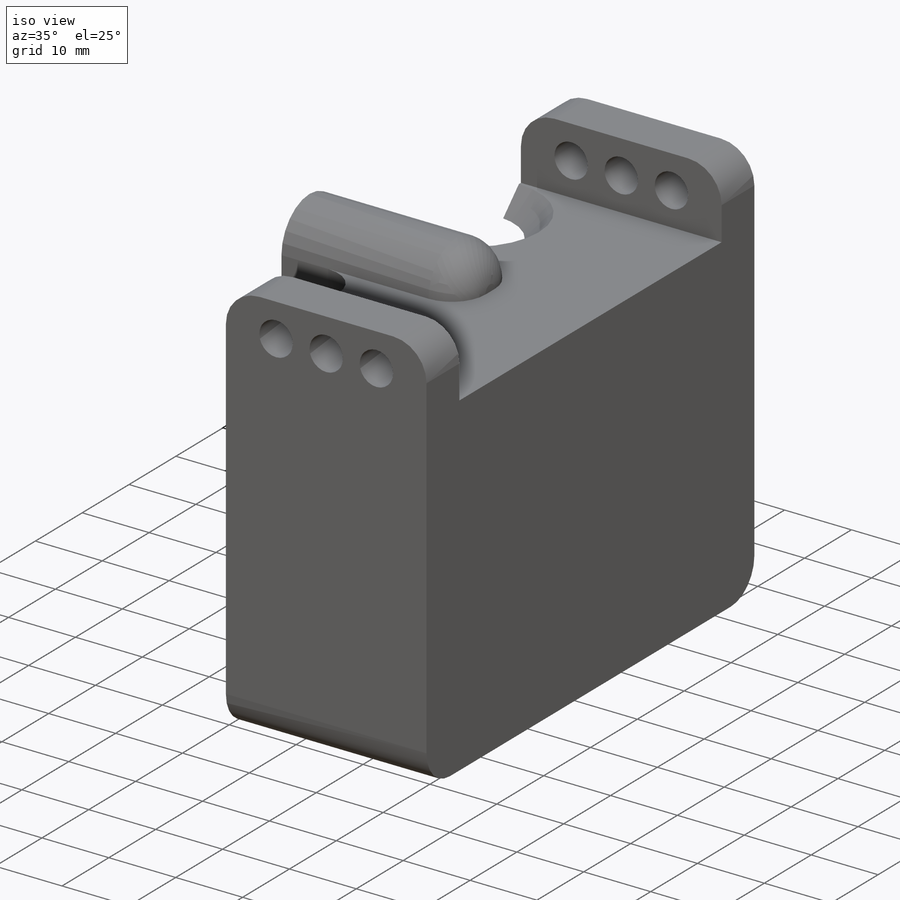
[diagram: iso view]
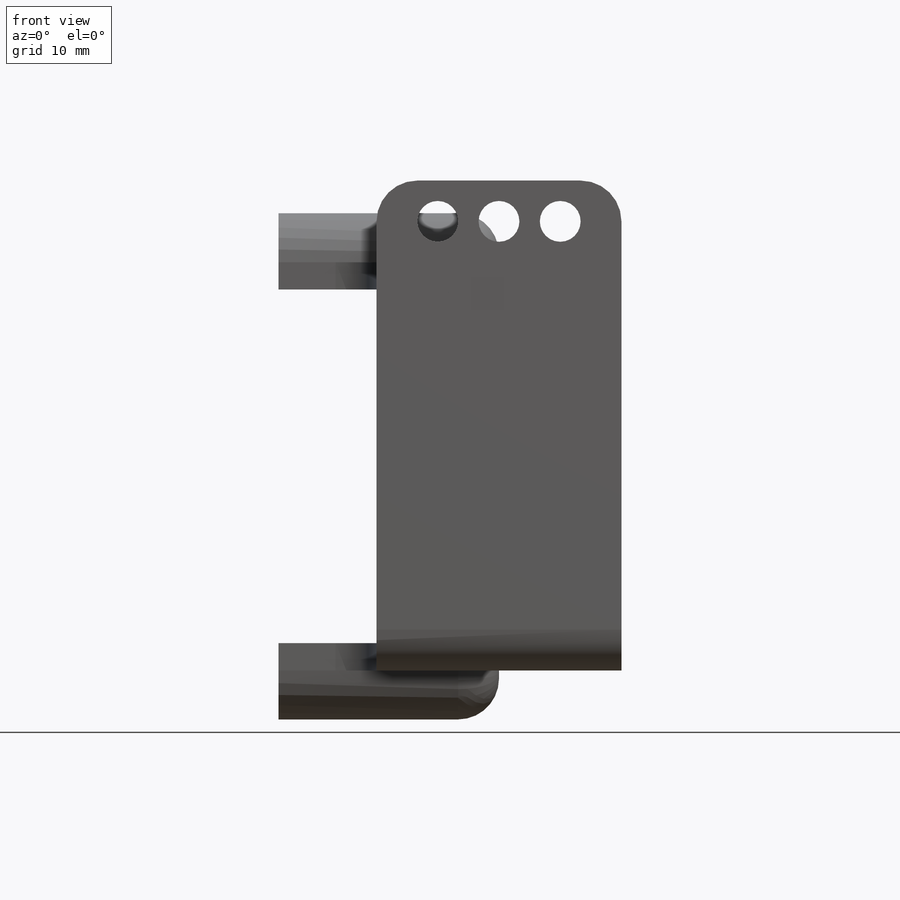
[diagram: front view]
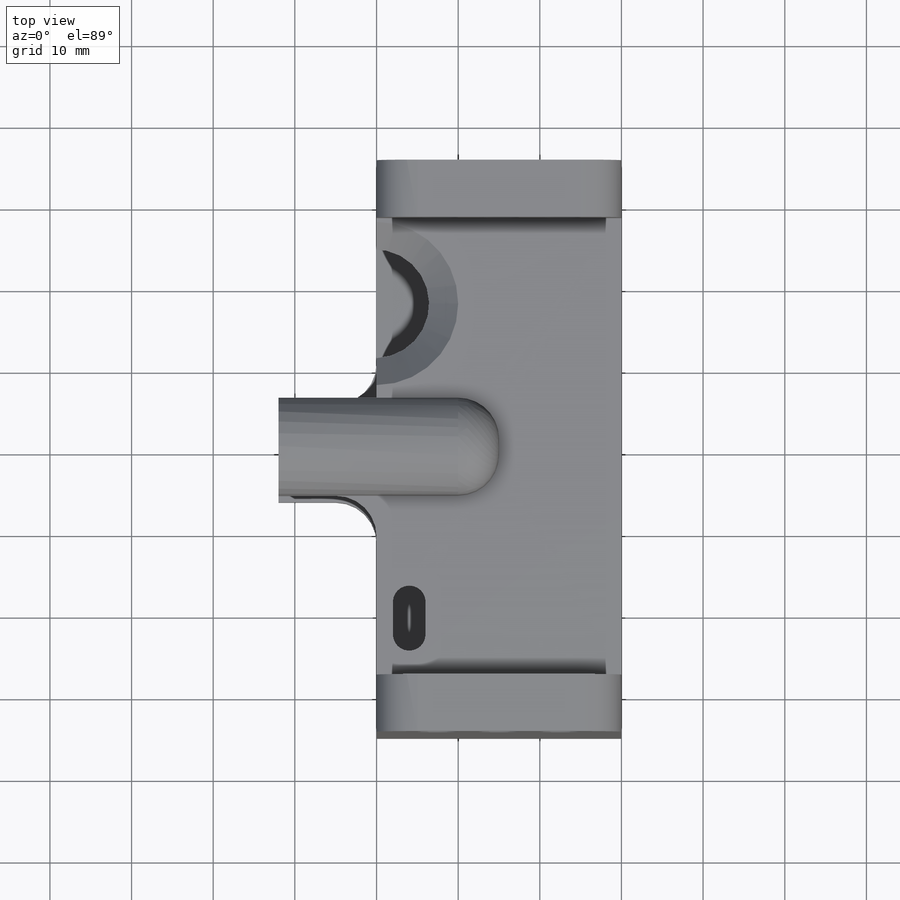
[diagram: top view]
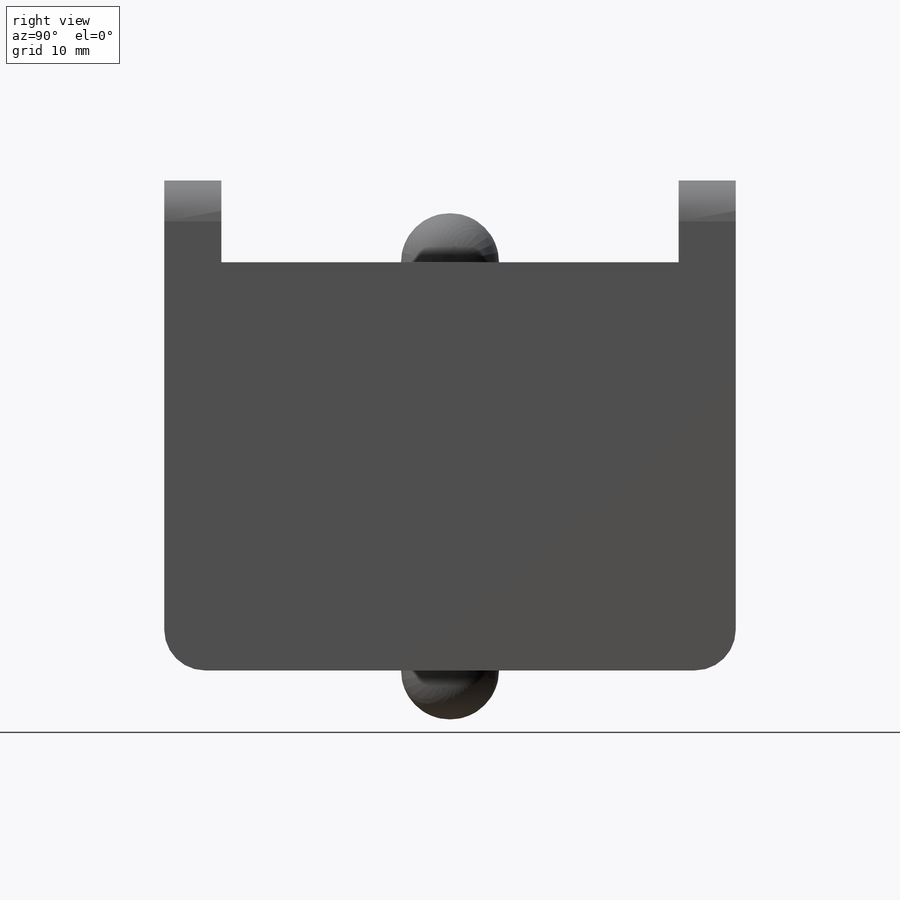
[diagram: right view]
SOLIDWORKS PART (.sldprt)
format: sldprt  version: not decoded by parser v0  size: 385,024 bytes
history: native  units: mm
features: sketch x10, fillet x6, cut_extrude x6, extrude x4, material x1, chamfer x1 (+11 scaffold rows collapsed)
feature tree (39):
  scaffold x11  (default folders/planes/origin — collapsed)
  material  "Material <not specified>"
  sketch  "Sketch1"  dims[c1.D1=60.0mm c1.D2=~52.085603mm c2.D1=50.0mm c2.D2=70.0mm]
  extrude  "Boss-Extrude1"  Depth=30mm
  fillet  "Fillet1"  Radius=3mm
  sketch  "Sketch2"  dims[D1=61.1mm D2=43.3mm]
  cut_extrude  "Cut-Extrude1"  Depth=2mm
  sketch  "Sketch3"  dims[D1=7.0mm D2=35.0mm]
  extrude  "Hang tabs"  [1 undecoded]
  sketch  "Sketch4"  dims[D1=6.0mm]
  extrude  "Boss-Extrude3"  Depth=15mm
  sketch  "Sketch5"  dims[D1=3.0mm D2=3.0mm]
  cut_extrude  "Cut-Extrude2"  Depth=15mm
  sketch  "Sketch6"  dims[D1=10.0mm D2=13.0mm]
  cut_extrude  "Cut-Extrude3"  [1 undecoded]
  sketch  "Sketch7"  dims[D1=4.0mm D2=4.0mm D3=7.0mm D4=4.0mm]
  cut_extrude  "Cut-Extrude4"  [1 undecoded]
  sketch  "Sketch8"  dims[D2=5.0mm D1=5.0mm D3=7.5mm D4=7.5mm]
  cut_extrude  "Cut-Extrude5"  [1 undecoded]
  cut_extrude  "Cut-Extrude6"  [1 undecoded]
  sketch  "Sketch8<2>"
  fillet  "Fillet2"  Radius=5mm
  fillet  "Fillet3"  Radius=5mm
  chamfer  "Chamfer1"  Distance=5mm Angle=45deg
  fillet  "Fillet4"  Radius=5mm
  sketch  "Sketch9"  dims[D1=5.0mm D2=15.0mm D3=5.0mm D4=5.0mm]
  extrude  "Boss-Extrude4"  Depth=17.5mm
  fillet  "Fillet5"  Radius=5mm
  fillet  "Fillet6"  Radius=1mm
decode coverage: 21 of 27 modeling features carry decoded parameters
note: ~ marks probable driven/reference dimensions
note: 5 parameter values undecoded
summary: no parameter record found for 5 features
note: suppression state not decoded; provenance and decode notes live in map.json
